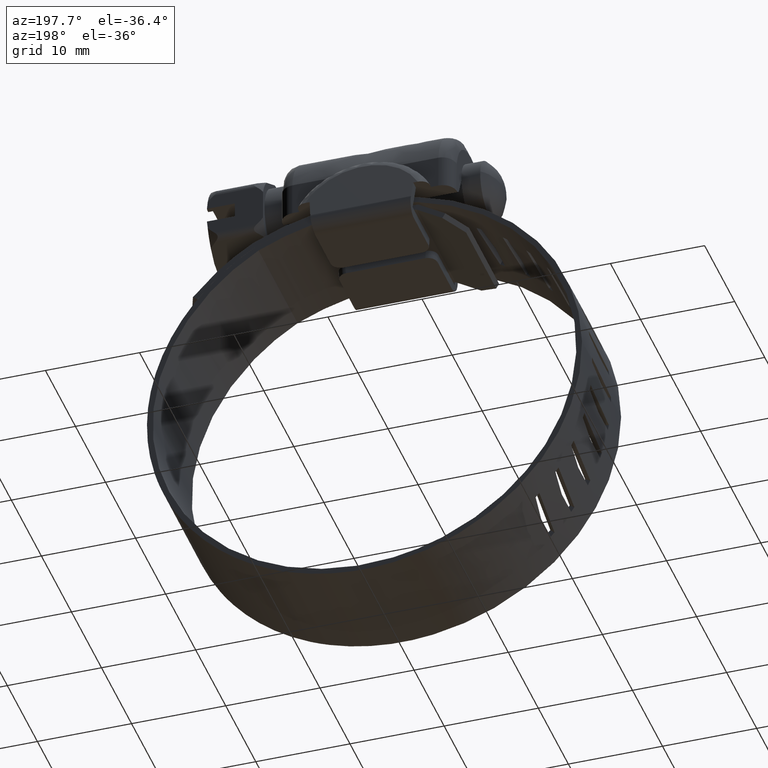
[diagram: clean part render]
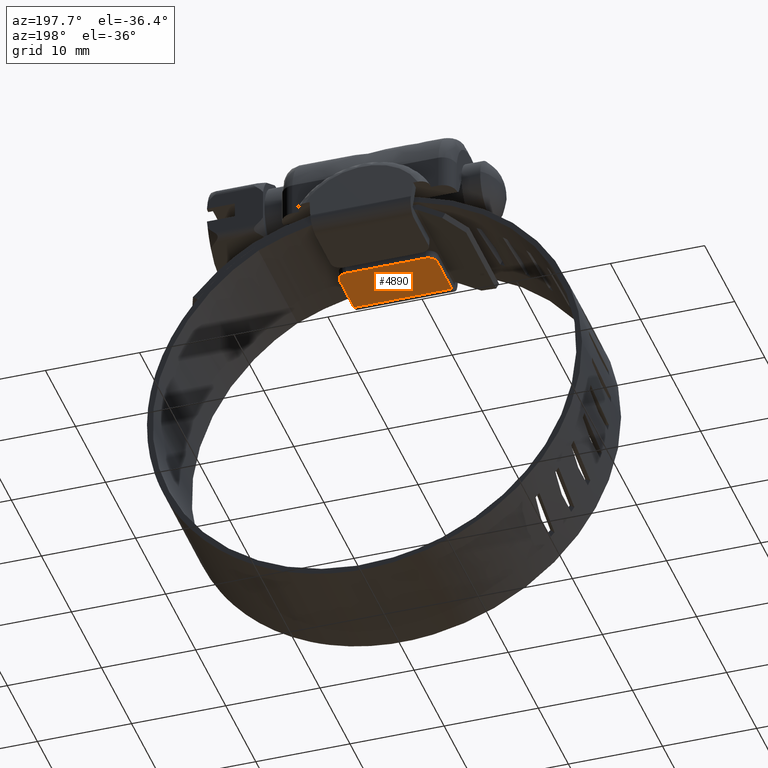
[diagram: same view with one face highlighted and labeled with its STEP entity id]
A machine part, auxiliary view. The second image highlights one B-rep face of the part: STEP entity #4890.
In plain terms, the highlighted face is a freeform B-spline surface patch.
Its self-contained STEP definition (entity closure, byte-faithful):
#2901=CARTESIAN_POINT('',(-5.200000000000000,-6.303124778494929,9.477083000000221));
#2902=VERTEX_POINT('',#2901);
#2918=CARTESIAN_POINT('',(5.200000000000100,-6.303124778494929,9.477083000000221));
#2919=VERTEX_POINT('',#2918);
#2920=CARTESIAN_POINT('',(5.200000000000100,-6.303124778494929,9.477083000000221));
#2921=CARTESIAN_POINT('',(-5.200000000000000,-6.303124778494929,9.477083000000221));
#2922=QUASI_UNIFORM_CURVE('',1,(#2920,#2921),.UNSPECIFIED.,.F.,.U.);
#2923=EDGE_CURVE('',#2919,#2902,#2922,.T.);
#3551=CARTESIAN_POINT('',(-4.196533785100645,-0.499999999999945,9.477083000000221));
#3552=VERTEX_POINT('',#3551);
#3558=CARTESIAN_POINT('',(-5.200000000000000,-1.499999999999946,9.477083000000221));
#3559=VERTEX_POINT('',#3558);
#3560=CARTESIAN_POINT('',(-5.200000000000000,-1.499999999999946,9.477083000000221));
#3561=CARTESIAN_POINT('',(-5.199852686587493,-1.409856731210112,9.477083000000226));
#3562=CARTESIAN_POINT('',(-5.173870581551460,-1.221428617235584,9.477083000000205));
#3563=CARTESIAN_POINT('',(-5.049197812277523,-0.941406165911662,9.477083000000222));
#3564=CARTESIAN_POINT('',(-4.858945935704647,-0.732232484397165,9.477083000000231));
#3565=CARTESIAN_POINT('',(-4.636035216929091,-0.591673415340277,9.477083000000167));
#3566=CARTESIAN_POINT('',(-4.426017852660496,-0.516909481906282,9.477083000000299));
#3567=CARTESIAN_POINT('',(-4.270287356727935,-0.499875388281955,9.477083000000127));
#3568=CARTESIAN_POINT('',(-4.196533785100645,-0.499999999999945,9.477083000000221));
#3569=B_SPLINE_CURVE_WITH_KNOTS('',3,(#3560,#3561,#3562,#3563,#3564,#3565,#3566,#3567,#3568),.UNSPECIFIED.,.F.,.U.,(4,1,1,1,1,1,4),(0.000000103932603,0.270434094609821,0.565471940798380,0.909664188568951,1.106348685765443,1.352210582690528,1.573477387716852),.UNSPECIFIED.);
#3570=EDGE_CURVE('',#3559,#3552,#3569,.T.);
#3652=CARTESIAN_POINT('',(4.196533785100741,-0.499999999999945,9.477083000000221));
#3653=VERTEX_POINT('',#3652);
#3654=CARTESIAN_POINT('',(5.200000000000100,-1.499999999999946,9.477083000000221));
#3655=VERTEX_POINT('',#3654);
#3656=CARTESIAN_POINT('',(4.196533785100741,-0.499999999999945,9.477083000000221));
#3657=CARTESIAN_POINT('',(4.311284161749581,-0.499705016525942,9.477083000000219));
#3658=CARTESIAN_POINT('',(4.532600792539378,-0.537790141124702,9.477083000000230));
#3659=CARTESIAN_POINT('',(4.787363666869024,-0.677411666094540,9.477083000000208));
#3660=CARTESIAN_POINT('',(4.960588374154786,-0.841834230169149,9.477083000000247));
#3661=CARTESIAN_POINT('',(5.084197283661110,-1.016678870083507,9.477083000000199));
#3662=CARTESIAN_POINT('',(5.176197471112677,-1.237781393321481,9.477083000000247));
#3663=CARTESIAN_POINT('',(5.199892560838476,-1.409845370301931,9.477083000000198));
#3664=CARTESIAN_POINT('',(5.200000000000100,-1.499999999999946,9.477083000000221));
#3665=B_SPLINE_CURVE_WITH_KNOTS('',3,(#3656,#3657,#3658,#3659,#3660,#3661,#3662,#3663,#3664),.UNSPECIFIED.,.F.,.U.,(4,1,1,1,1,1,4),(0.000000104137770,0.344233619480450,0.663882769112449,0.860567124389022,1.057283360959708,1.303179765775776,1.573642049777769),.UNSPECIFIED.);
#3666=EDGE_CURVE('',#3653,#3655,#3665,.T.);
#3778=CARTESIAN_POINT('',(4.196533785100741,-0.499999999999945,9.477083000000221));
#3779=CARTESIAN_POINT('',(-4.196533785100645,-0.499999999999945,9.477083000000221));
#3780=QUASI_UNIFORM_CURVE('',1,(#3778,#3779),.UNSPECIFIED.,.F.,.U.);
#3781=EDGE_CURVE('',#3653,#3552,#3780,.T.);
#4869=CARTESIAN_POINT('',(-5.719479747431165,-6.592991013359923,9.477083000000221));
#4870=CARTESIAN_POINT('',(5.719479468481527,-6.592991013359923,9.477083000000221));
#4871=CARTESIAN_POINT('',(-5.719479747431165,-0.210133765134953,9.477083000000221));
#4872=CARTESIAN_POINT('',(5.719479468481527,-0.210133765134953,9.477083000000221));
#4873=B_SPLINE_SURFACE_WITH_KNOTS('',1,1,((#4869,#4871),(#4870,#4872)),.UNSPECIFIED.,.F.,.F.,.U.,(2,2),(2,2),(0.0,11.438959215912689),(0.0,6.382857248224969),.UNSPECIFIED.);
#4874=CARTESIAN_POINT('',(5.200000000000100,-6.303124778494929,9.477083000000221));
#4875=CARTESIAN_POINT('',(5.200000000000100,-1.499999999999946,9.477083000000221));
#4876=QUASI_UNIFORM_CURVE('',1,(#4874,#4875),.UNSPECIFIED.,.F.,.U.);
#4877=EDGE_CURVE('',#2919,#3655,#4876,.T.);
#4878=ORIENTED_EDGE('',*,*,#4877,.F.);
#4879=ORIENTED_EDGE('',*,*,#2923,.T.);
#4880=CARTESIAN_POINT('',(-5.200000000000000,-6.303124778494929,9.477083000000221));
#4881=CARTESIAN_POINT('',(-5.200000000000000,-1.499999999999946,9.477083000000221));
#4882=QUASI_UNIFORM_CURVE('',1,(#4880,#4881),.UNSPECIFIED.,.F.,.U.);
#4883=EDGE_CURVE('',#2902,#3559,#4882,.T.);
#4884=ORIENTED_EDGE('',*,*,#4883,.T.);
#4885=ORIENTED_EDGE('',*,*,#3570,.T.);
#4886=ORIENTED_EDGE('',*,*,#3781,.F.);
#4887=ORIENTED_EDGE('',*,*,#3666,.T.);
#4888=EDGE_LOOP('',(#4878,#4879,#4884,#4885,#4886,#4887));
#4889=FACE_OUTER_BOUND('',#4888,.T.);
#4890=ADVANCED_FACE('',(#4889),#4873,.F.);